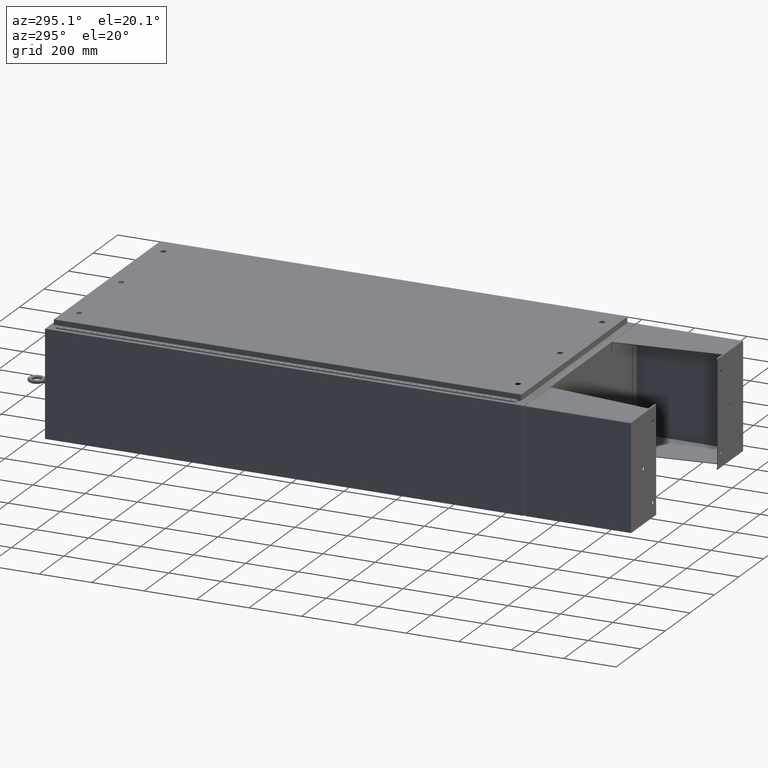
[diagram: clean part render]
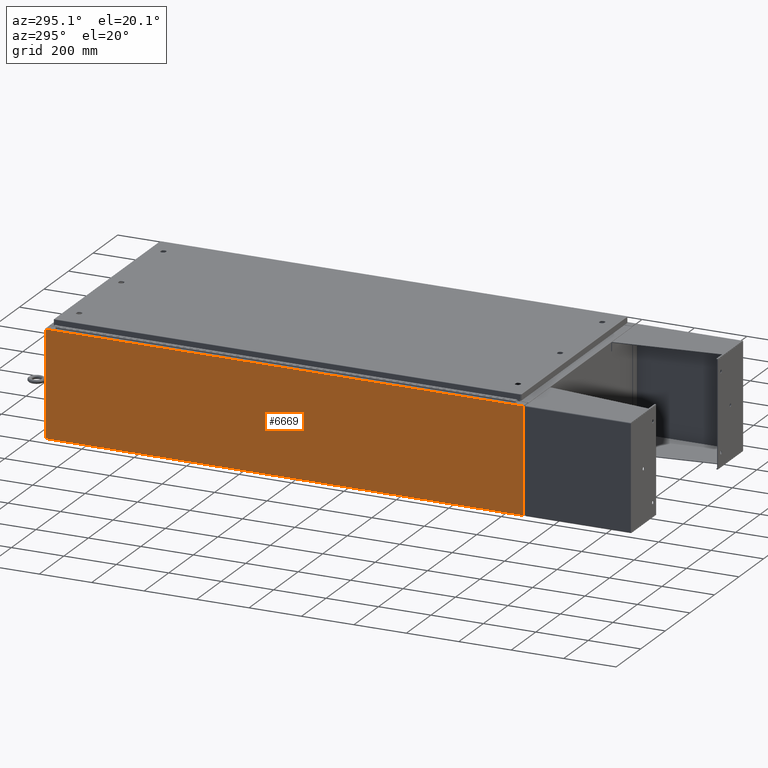
[diagram: same view with one face highlighted and labeled with its STEP entity id]
A machine part, auxiliary view. The second image highlights one B-rep face of the part: STEP entity #6669.
In plain terms, the highlighted planar face has unit normal (1, 0, 0).
Its self-contained STEP definition (entity closure, byte-faithful):
#1404 = CARTESIAN_POINT ( 'NONE',  ( -18.00000000000005000, -35.92530000000000000, 15.83759999999999700 ) ) ;
#1978 = CARTESIAN_POINT ( 'NONE',  ( -18.00000000000005000, 35.92530000000000000, 15.83759999999999700 ) ) ;
#5804 = DIRECTION ( 'NONE',  ( -0.0000000000000000000, 1.000000000000000000, -0.0000000000000000000 ) ) ;
#6669 = ADVANCED_FACE ( 'NONE', ( #34430 ), #39725, .F. ) ;
#7660 = VECTOR ( 'NONE', #5804, 39.37007874015748100 ) ;
#9699 = AXIS2_PLACEMENT_3D ( 'NONE', #44778, #51152, #36606 ) ;
#13042 = DIRECTION ( 'NONE',  ( 3.430827668758847900E-015, 0.0000000000000000000, -1.000000000000000000 ) ) ;
#14248 = ORIENTED_EDGE ( 'NONE', *, *, #21830, .T. ) ;
#17814 = VECTOR ( 'NONE', #47253, 39.37007874015748100 ) ;
#18604 = VERTEX_POINT ( 'NONE', #1978 ) ;
#21667 = CARTESIAN_POINT ( 'NONE',  ( -17.99999999999999600, -35.92530000000000000, 0.01299999999999984700 ) ) ;
#21830 = EDGE_CURVE ( 'NONE', #23223, #18604, #27336, .T. ) ;
#23223 = VERTEX_POINT ( 'NONE', #1404 ) ;
#24141 = CARTESIAN_POINT ( 'NONE',  ( -17.99999999999999600, 35.92530000000000000, -6.201571169367083300E-014 ) ) ;
#25601 = VECTOR ( 'NONE', #58296, 39.37007874015748100 ) ;
#26644 = EDGE_CURVE ( 'NONE', #18604, #28812, #63025, .T. ) ;
#27336 = LINE ( 'NONE', #49207, #25601 ) ;
#27855 = CARTESIAN_POINT ( 'NONE',  ( -17.99999999999999600, 35.92530000000000000, 0.01299999999999984700 ) ) ;
#28812 = VERTEX_POINT ( 'NONE', #56625 ) ;
#29844 = EDGE_LOOP ( 'NONE', ( #14248, #37264, #49567, #58796 ) ) ;
#32374 = VECTOR ( 'NONE', #13042, 39.37007874015748100 ) ;
#34430 = FACE_OUTER_BOUND ( 'NONE', #29844, .T. ) ;
#36355 = CARTESIAN_POINT ( 'NONE',  ( -17.99999999999999600, -35.92529999999999300, -6.201571169367083300E-014 ) ) ;
#36606 = DIRECTION ( 'NONE',  ( 3.430827668758847900E-015, 0.0000000000000000000, -1.000000000000000000 ) ) ;
#37264 = ORIENTED_EDGE ( 'NONE', *, *, #26644, .T. ) ;
#38011 = EDGE_CURVE ( 'NONE', #66352, #28812, #64024, .T. ) ;
#39725 = PLANE ( 'NONE',  #9699 ) ;
#44778 = CARTESIAN_POINT ( 'NONE',  ( -17.99999999999999600, 0.0000000000000000000, -6.201571169367083300E-014 ) ) ;
#46769 = LINE ( 'NONE', #36355, #17814 ) ;
#47253 = DIRECTION ( 'NONE',  ( -3.430827668758847900E-015, 0.0000000000000000000, 1.000000000000000000 ) ) ;
#49207 = CARTESIAN_POINT ( 'NONE',  ( -18.00000000000005000, -35.92530000000000000, 15.83759999999999700 ) ) ;
#49567 = ORIENTED_EDGE ( 'NONE', *, *, #38011, .F. ) ;
#51152 = DIRECTION ( 'NONE',  ( 1.000000000000000000, 0.0000000000000000000, 3.430827668758847900E-015 ) ) ;
#56625 = CARTESIAN_POINT ( 'NONE',  ( -17.99999999999999600, 35.92530000000000000, 0.01299999999999984800 ) ) ;
#58296 = DIRECTION ( 'NONE',  ( 0.0000000000000000000, 1.000000000000000000, 0.0000000000000000000 ) ) ;
#58796 = ORIENTED_EDGE ( 'NONE', *, *, #70282, .T. ) ;
#63025 = LINE ( 'NONE', #24141, #32374 ) ;
#64024 = LINE ( 'NONE', #27855, #7660 ) ;
#66352 = VERTEX_POINT ( 'NONE', #21667 ) ;
#70282 = EDGE_CURVE ( 'NONE', #66352, #23223, #46769, .T. ) ;